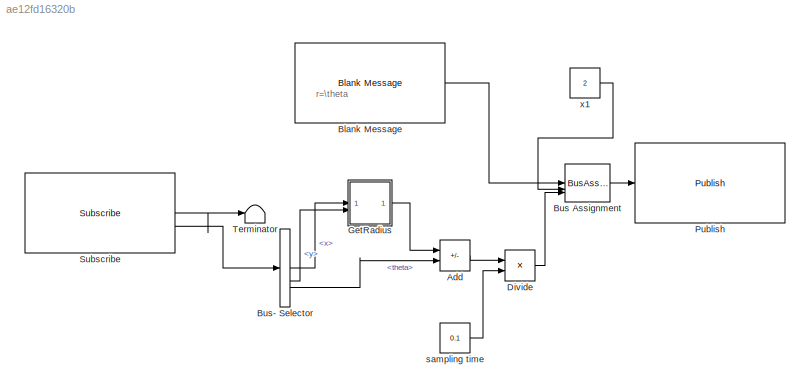
MODEL slx_ae12fd16320b
KIND model
CONFIG AbsTol = auto
CONFIG EnableMultiTasking = off
CONFIG FixedStep = 0.05
CONFIG MaxStep = auto
CONFIG MinStep = auto
CONFIG RelTol = 1e-3
CONFIG SampleTimeConstraint = Unconstrained
CONFIG SolverName = FixedStepAuto
CONFIG StartTime = 0.0
CONFIG StopTime = inf
BLOCK [Sum] Add
  IconShape = rectangular
  Inputs = +-
BLOCK [Reference] Blank Message  REF=ros2lib/Blank Message  (lib defined in slx_3c1549211f48)
  SourceBlock = ros2lib/Blank Message
  SourceType = ROS2 Blank Message
BLOCK [BusAssignment] Bus Assignment
  AssignedSignals = linear.x,angular.z
BLOCK [BusSelector] Bus- Selector
  OutputSignals = x,y,theta
BLOCK [Product] Divide
  Inputs = */
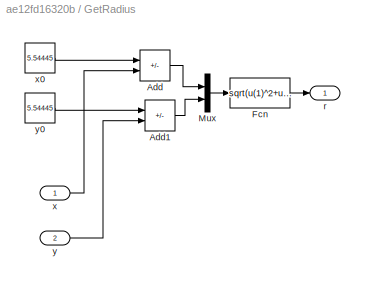
BLOCK [SubSystem] GetRadius
BLOCK [Sum] GetRadius/Add
  IconShape = rectangular
  Inputs = +-
BLOCK [Sum] GetRadius/Add1
  IconShape = rectangular
  Inputs = +-
BLOCK [Fcn] GetRadius/Fcn
  Expr = sqrt(u(1)^2+u(2)^2)
BLOCK [Mux] GetRadius/Mux
  DisplayOption = bar
  Inputs = 2
BLOCK [Outport] GetRadius/r
BLOCK [Inport] GetRadius/x
BLOCK [Constant] GetRadius/x0
  Value = 5.54445
BLOCK [Inport] GetRadius/y
  Port = 2
BLOCK [Constant] GetRadius/y0
  Value = 5.54445
BLOCK [Reference] Publish  REF=ros2lib/Publish  (lib defined in slx_3c1549211f48)
  SourceBlock = ros2lib/Publish
  SourceType = ROS2 Publish
BLOCK [Reference] Subscribe  REF=ros2lib/Subscribe  (lib defined in slx_3c1549211f48)
  SourceBlock = ros2lib/Subscribe
  SourceType = ROS2 Subscribe
BLOCK [Terminator] Terminator
BLOCK [Constant] sampling time
  Value = 0.1
BLOCK [Constant] x1
  Value = 2
ANNOTATION (root): r=\theta
LINE Add:1 -> Divide:1
LINE Blank Message:1 -> Bus Assignment:1
LINE Bus Assignment:1 -> Publish:1
LINE Bus- Selector:1 -> GetRadius:1
LINE Bus- Selector:2 -> GetRadius:2
LINE Bus- Selector:3 -> Add:2
LINE Divide:1 -> Bus Assignment:3
LINE GetRadius/Add1:1 -> GetRadius/Mux:2
LINE GetRadius/Add:1 -> GetRadius/Mux:1
LINE GetRadius/Fcn:1 -> GetRadius/r:1
LINE GetRadius/Mux:1 -> GetRadius/Fcn:1
LINE GetRadius/x0:1 -> GetRadius/Add:1
LINE GetRadius/x:1 -> GetRadius/Add:2
LINE GetRadius/y0:1 -> GetRadius/Add1:1
LINE GetRadius/y:1 -> GetRadius/Add1:2
LINE GetRadius:1 -> Add:1
LINE Subscribe:1 -> Terminator:1
LINE Subscribe:2 -> Bus- Selector:1
LINE sampling time:1 -> Divide:2
LINE x1:1 -> Bus Assignment:2
